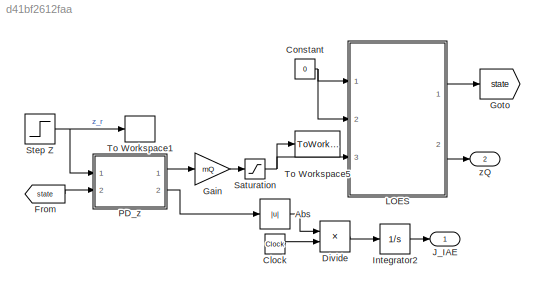
MODEL slx_d41bf2612faa
KIND model
CONFIG AbsTol = auto
CONFIG EnableMultiTasking = on
CONFIG FixedStep = 1/50
CONFIG MaxStep = auto
CONFIG MinStep = auto
CONFIG RelTol = 1e-3
CONFIG SampleTimeConstraint = Unconstrained
CONFIG Solver = ode3
CONFIG SolverName = ode3
CONFIG StartTime = 0.0
CONFIG StopTime = 5
BLOCK [Abs] Abs
  SaturateOnIntegerOverflow = off
BLOCK [Clock] Clock
BLOCK [Constant] Constant
  Value = 0
BLOCK [Product] Divide
  InputSameDT = off
  Inputs = **
  OutDataTypeStr = Inherit: Inherit via internal rule
  Ports = [2, 1]
  RndMeth = Floor
  SaturateOnIntegerOverflow = off
BLOCK [From] From
  GotoTag = state
BLOCK [Gain] Gain
  Gain = mQ
  OutDataTypeStr = Inherit: Inherit via internal rule
  ParamDataTypeStr = Inherit: Inherit via internal rule
  SaturateOnIntegerOverflow = off
BLOCK [Goto] Goto
  GotoTag = state
BLOCK [Integrator] Integrator2
  Ports = [1, 1]
BLOCK [Outport] J_IAE
  IconDisplay = Port number
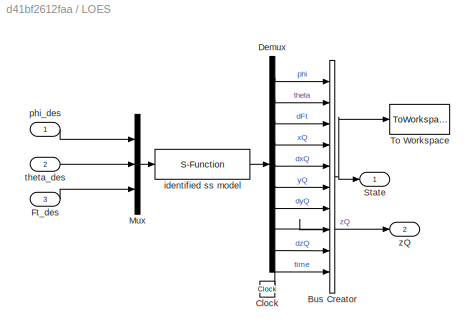
BLOCK [SubSystem] LOES
  Ports = [3, 2]
  RequestExecContextInheritance = off
  Variant = off
BLOCK [BusCreator] LOES/Bus Creator
  DisplayOption = bar
  InheritFromInputs = on
  Inputs = 10
  Ports = [10, 1]
BLOCK [Clock] LOES/Clock
BLOCK [Demux] LOES/Demux
  DisplayOption = bar
  Outputs = 9
  Ports = [1, 9]
BLOCK [Inport] LOES/Ft_des
  IconDisplay = Port number
  Port = 3
BLOCK [Mux] LOES/Mux
  DisplayOption = bar
  Inputs = 3
  Ports = [3, 1]
BLOCK [Outport] LOES/State
  IconDisplay = Port number
BLOCK [ToWorkspace] LOES/To Workspace
  FixptAsFi = on
  MaxDataPoints = inf
  Ports = [1]
  SampleTime = -1
  Save2DSignal = 3-D array (concatenate along third dimension)
  VariableName = ss_output
BLOCK [S-Function] LOES/identified ss model
  EnableBusSupport = off
  FunctionName = LG_ID_ss_Model
  Ports = [1, 1]
  SFcnIsStateOwnerBlock = off
  SFunctionDeploymentMode = off
BLOCK [Inport] LOES/phi_des
  IconDisplay = Port number
BLOCK [Inport] LOES/theta_des
  IconDisplay = Port number
  Port = 2
BLOCK [Outport] LOES/zQ
  IconDisplay = Port number
  Port = 2
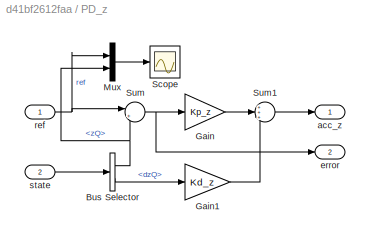
BLOCK [SubSystem] PD_z
  Ports = [2, 2]
  RequestExecContextInheritance = off
  Variant = off
BLOCK [BusSelector] PD_z/Bus Selector
  OutputAsBus = off
  OutputSignals = zQ,dzQ
  Ports = [1, 2]
BLOCK [Gain] PD_z/Gain
  Gain = Kp_z
  OutDataTypeStr = Inherit: Inherit via internal rule
  ParamDataTypeStr = Inherit: Inherit via internal rule
  SaturateOnIntegerOverflow = off
BLOCK [Gain] PD_z/Gain1
  Gain = Kd_z
  OutDataTypeStr = Inherit: Inherit via internal rule
  ParamDataTypeStr = Inherit: Inherit via internal rule
  SaturateOnIntegerOverflow = off
BLOCK [Mux] PD_z/Mux
  DisplayOption = bar
  Inputs = 2
  Ports = [2, 1]
BLOCK [Scope] PD_z/Scope
  NumInputPorts = 1
  Ports = [1]
  ScopeSpecificationString = Simulink.scopes.TimeScopeBlockCfg('CurrentConfiguration', extmgr.ConfigurationSet(extmgr.Configuration('Core','General UI',true),extmgr.Configuration('Core','Source UI',true),extmgr.Configuration('Sources','WiredSimulink',true),extmgr.Configuration('Visuals','Time Domain',true,'SerializedDisplays',{struct('MinYLimReal','-16.76316','MaxYLimReal','12.04924','YLabelReal','','MinYLimMag','0.00000','Ma...<+1394ch>
BLOCK [Sum] PD_z/Sum
  IconShape = round
  InputSameDT = off
  Inputs = |+-
  OutDataTypeStr = Inherit: Inherit via internal rule
  Ports = [2, 1]
  SaturateOnIntegerOverflow = off
BLOCK [Sum] PD_z/Sum1
  IconShape = round
  InputSameDT = off
  Inputs = +++
  OutDataTypeStr = Inherit: Inherit via internal rule
  Ports = [3, 1]
  SaturateOnIntegerOverflow = off
BLOCK [Outport] PD_z/acc_z
  IconDisplay = Port number
BLOCK [Outport] PD_z/error
  IconDisplay = Port number
  Port = 2
BLOCK [Inport] PD_z/ref
  IconDisplay = Port number
BLOCK [Inport] PD_z/state
  IconDisplay = Port number
  Port = 2
BLOCK [Saturate] Saturation
  InputPortMap = u0
  LowerLimit = -0.5645*9.8
  Ports = [1, 1]
  UpperLimit = 10
BLOCK [Step] Step Z
  After = 0.2
  SampleTime = 0
BLOCK [ToWorkspace] To Workspace1
  FixptAsFi = on
  MaxDataPoints = inf
  Ports = [1]
  SampleTime = -1
  Save2DSignal = 3-D array (concatenate along third dimension)
  VariableName = z_r
BLOCK [ToWorkspace] To Workspace5
  FixptAsFi = on
  MaxDataPoints = inf
  Ports = [1]
  SampleTime = -1
  Save2DSignal = 3-D array (concatenate along third dimension)
  VariableName = dFt_des
BLOCK [Outport] zQ
  IconDisplay = Port number
  Port = 2
LINE Abs:1 -> Divide:1
LINE Clock:1 -> Divide:2
NET Constant:1 -> LOES:1, LOES:2
LINE Divide:1 -> Integrator2:1
LINE From:1 -> PD_z:2
LINE Gain:1 -> Saturation:1
LINE Integrator2:1 -> J_IAE:1
NET LOES/Bus Creator:1 -> LOES/State:1, LOES/To Workspace:1
LINE LOES/Clock:1 -> LOES/Bus Creator:10
LINE LOES/Demux:1 -> LOES/Bus Creator:1
LINE LOES/Demux:2 -> LOES/Bus Creator:2
LINE LOES/Demux:3 -> LOES/Bus Creator:3
LINE LOES/Demux:4 -> LOES/Bus Creator:4
LINE LOES/Demux:5 -> LOES/Bus Creator:5
LINE LOES/Demux:6 -> LOES/Bus Creator:6
LINE LOES/Demux:7 -> LOES/Bus Creator:7
NET LOES/Demux:8 -> LOES/Bus Creator:8, LOES/zQ:1
LINE LOES/Demux:9 -> LOES/Bus Creator:9
LINE LOES/Ft_des:1 -> LOES/Mux:3
LINE LOES/Mux:1 -> LOES/identified ss model:1
LINE LOES/identified ss model:1 -> LOES/Demux:1
LINE LOES/phi_des:1 -> LOES/Mux:1
LINE LOES/theta_des:1 -> LOES/Mux:2
LINE LOES:1 -> Goto:1
LINE LOES:2 -> zQ:1
NET PD_z/Bus Selector:1 -> PD_z/Mux:2, PD_z/Sum:2
LINE PD_z/Bus Selector:2 -> PD_z/Gain1:1
LINE PD_z/Gain1:1 -> PD_z/Sum1:3
LINE PD_z/Gain:1 -> PD_z/Sum1:2
LINE PD_z/Mux:1 -> PD_z/Scope:1
LINE PD_z/Sum1:1 -> PD_z/acc_z:1
NET PD_z/Sum:1 -> PD_z/Gain:1, PD_z/error:1
NET PD_z/ref:1 -> PD_z/Mux:1, PD_z/Sum:1
LINE PD_z/state:1 -> PD_z/Bus Selector:1
LINE PD_z:1 -> Gain:1
LINE PD_z:2 -> Abs:1
NET Saturation:1 -> LOES:3, To Workspace5:1
NET Step Z:1 -> PD_z:1, To Workspace1:1
note: NET lines group one-source signal fan-out (src -> all destinations, sorted); 1:1 wires keep LINE
